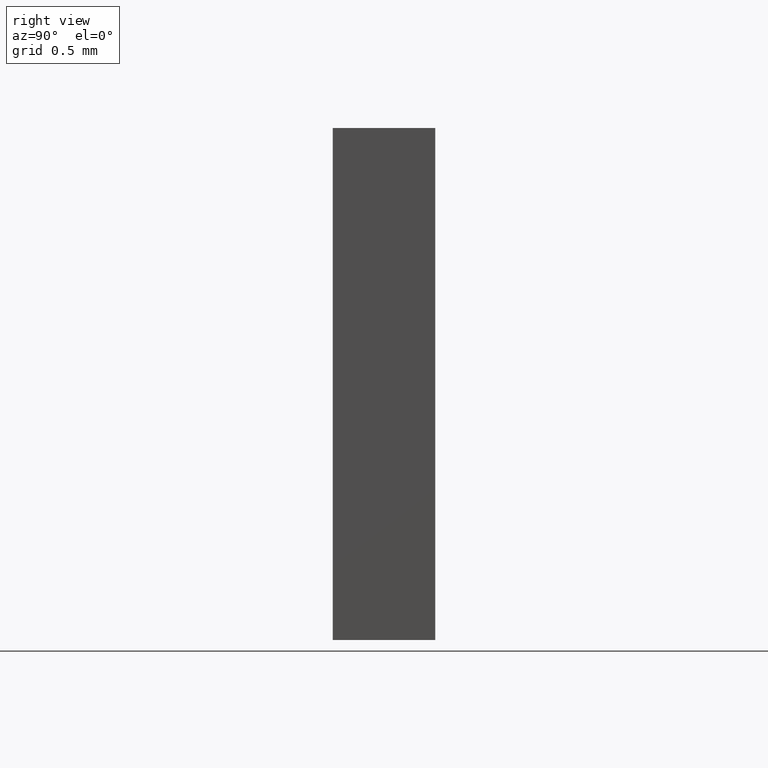
[diagram: clean part render]
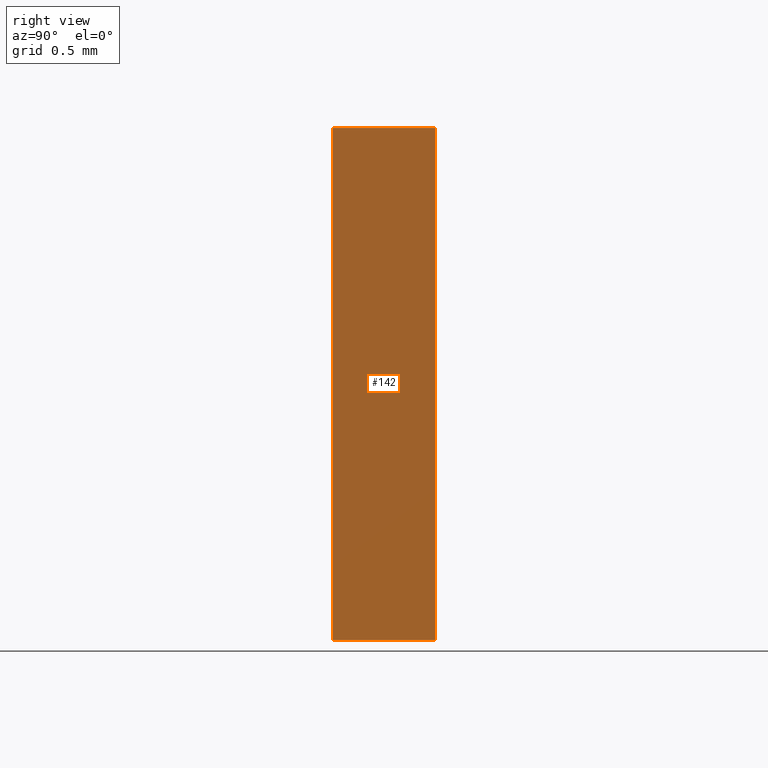
[diagram: same view with one face highlighted and labeled with its STEP entity id]
A machine part, right view. The second image highlights one B-rep face of the part: STEP entity #142.
In plain terms, the highlighted planar face has unit normal (-1, 0, 0).
Its self-contained STEP definition (entity closure, byte-faithful):
#43 = PLANE ( 'NONE',  #184 ) ;
#62 = CARTESIAN_POINT ( 'NONE',  ( 0.9999999999999997800, 0.4000000000000000200, -1.000000000000000000 ) ) ;
#63 = DIRECTION ( 'NONE',  ( -1.000000000000000000, 0.0000000000000000000, 1.084202172485504400E-016 ) ) ;
#64 = DIRECTION ( 'NONE',  ( 1.084202172485504400E-016, 0.0000000000000000000, 1.000000000000000000 ) ) ;
#65 = DIRECTION ( 'NONE',  ( -0.0000000000000000000, -1.000000000000000000, -0.0000000000000000000 ) ) ;
#75 = CARTESIAN_POINT ( 'NONE',  ( 1.000000000000000000, 0.4000000000000000200, 1.000000000000000000 ) ) ;
#78 = CARTESIAN_POINT ( 'NONE',  ( 0.9999999999999997800, 0.0000000000000000000, -1.000000000000000000 ) ) ;
#79 = DIRECTION ( 'NONE',  ( -1.084202172485504400E-016, -0.0000000000000000000, -1.000000000000000000 ) ) ;
#84 = CARTESIAN_POINT ( 'NONE',  ( 0.9999999999999997800, 0.4000000000000000200, -1.000000000000000000 ) ) ;
#97 = DIRECTION ( 'NONE',  ( -1.084202172485504400E-016, -0.0000000000000000000, -1.000000000000000000 ) ) ;
#98 = CARTESIAN_POINT ( 'NONE',  ( 0.9999999999999997800, 0.4000000000000000200, -1.000000000000000000 ) ) ;
#99 = CARTESIAN_POINT ( 'NONE',  ( 0.9999999999999997800, 0.4000000000000000200, -1.000000000000000000 ) ) ;
#100 = DIRECTION ( 'NONE',  ( -0.0000000000000000000, -1.000000000000000000, -0.0000000000000000000 ) ) ;
#102 = CARTESIAN_POINT ( 'NONE',  ( 0.9999999999999997800, 0.0000000000000000000, -1.000000000000000000 ) ) ;
#105 = CARTESIAN_POINT ( 'NONE',  ( 1.000000000000000000, 0.4000000000000000200, 1.000000000000000000 ) ) ;
#106 = CARTESIAN_POINT ( 'NONE',  ( 1.000000000000000000, 0.0000000000000000000, 1.000000000000000000 ) ) ;
#142 = ADVANCED_FACE ( 'NONE', ( #209 ), #43, .F. ) ;
#145 = EDGE_CURVE ( 'NONE', #278, #255, #220, .T. ) ;
#146 = EDGE_CURVE ( 'NONE', #264, #278, #217, .T. ) ;
#184 = AXIS2_PLACEMENT_3D ( 'NONE', #62, #63, #64 ) ;
#205 = LINE ( 'NONE', #98, #208 ) ;
#206 = LINE ( 'NONE', #84, #207 ) ;
#207 = VECTOR ( 'NONE', #97, 1000.000000000000000 ) ;
#208 = VECTOR ( 'NONE', #100, 1000.000000000000000 ) ;
#209 = FACE_OUTER_BOUND ( 'NONE', #288, .T. ) ;
#217 = LINE ( 'NONE', #75, #222 ) ;
#218 = VECTOR ( 'NONE', #79, 1000.000000000000000 ) ;
#220 = LINE ( 'NONE', #78, #218 ) ;
#222 = VECTOR ( 'NONE', #65, 1000.000000000000000 ) ;
#246 = EDGE_CURVE ( 'NONE', #264, #253, #206, .T. ) ;
#247 = EDGE_CURVE ( 'NONE', #253, #255, #205, .T. ) ;
#253 = VERTEX_POINT ( 'NONE', #99 ) ;
#255 = VERTEX_POINT ( 'NONE', #102 ) ;
#264 = VERTEX_POINT ( 'NONE', #105 ) ;
#276 = ORIENTED_EDGE ( 'NONE', *, *, #146, .T. ) ;
#278 = VERTEX_POINT ( 'NONE', #106 ) ;
#288 = EDGE_LOOP ( 'NONE', ( #289, #291, #290, #276 ) ) ;
#289 = ORIENTED_EDGE ( 'NONE', *, *, #145, .T. ) ;
#290 = ORIENTED_EDGE ( 'NONE', *, *, #246, .F. ) ;
#291 = ORIENTED_EDGE ( 'NONE', *, *, #247, .F. ) ;